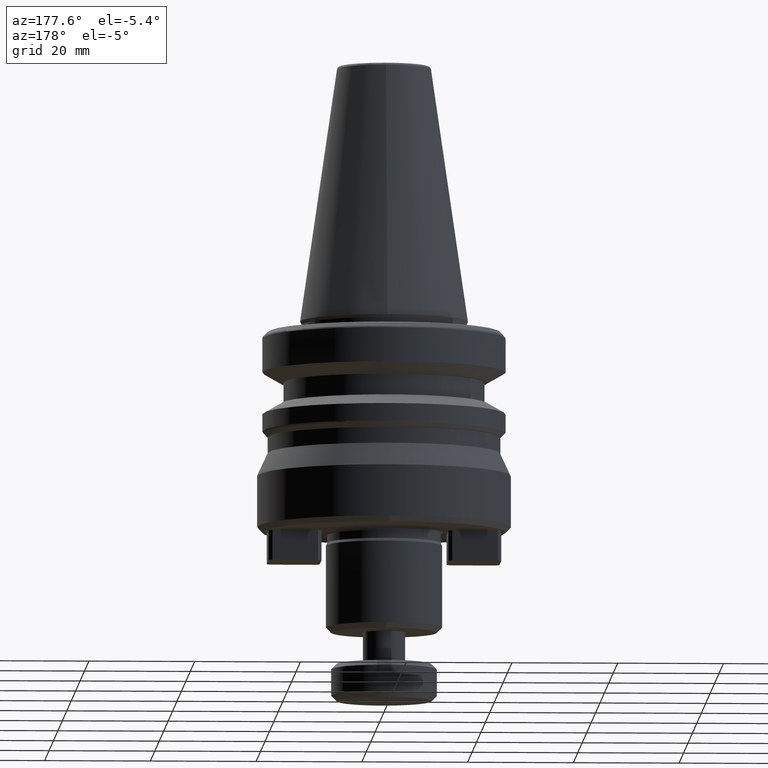
[diagram: clean part render]
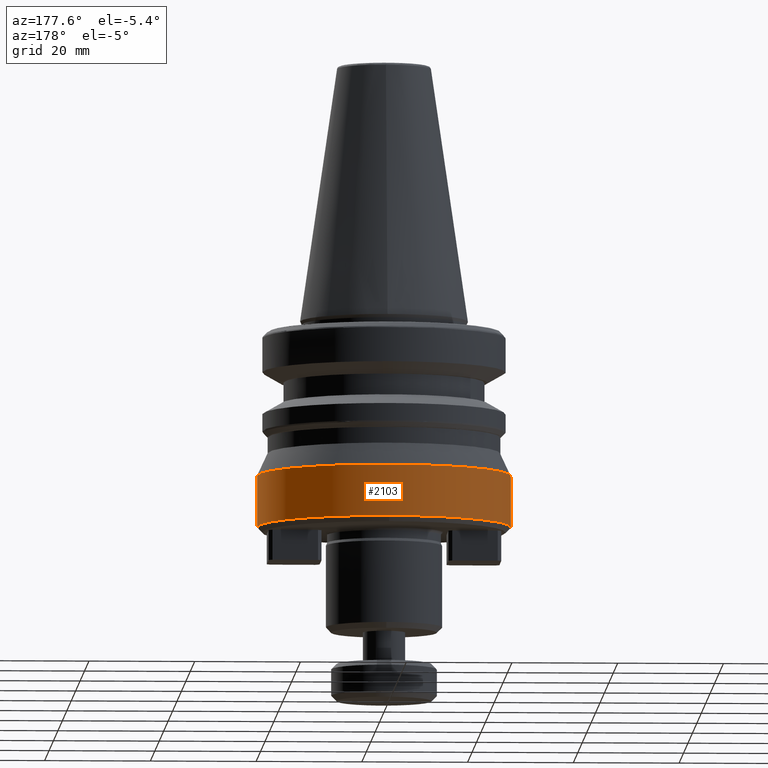
[diagram: same view with one face highlighted and labeled with its STEP entity id]
A machine part, auxiliary view. The second image highlights one B-rep face of the part: STEP entity #2103.
In plain terms, the highlighted cylindrical surface (partial cylindrical patch) has radius 24 mm, axis along (0, -0, 1).
Its self-contained STEP definition (entity closure, byte-faithful):
#142 = DIRECTION ( 'NONE',  ( 1.000000000000000000, 0.0000000000000000000, 0.0000000000000000000 ) ) ;
#145 = DIRECTION ( 'NONE',  ( -0.0000000000000000000, -0.0000000000000000000, -1.000000000000000000 ) ) ;
#147 = CIRCLE ( 'NONE', #1774, 24.00000000000000000 ) ;
#150 = CARTESIAN_POINT ( 'NONE',  ( 0.0000000000000000000, 0.0000000000000000000, -39.00000000000000000 ) ) ;
#160 = ORIENTED_EDGE ( 'NONE', *, *, #1160, .T. ) ;
#211 = VERTEX_POINT ( 'NONE', #1400 ) ;
#430 = AXIS2_PLACEMENT_3D ( 'NONE', #150, #145, #142 ) ;
#684 = CARTESIAN_POINT ( 'NONE',  ( -24.00000000000000000, 2.939152317953647900E-015, -39.00000000000000000 ) ) ;
#714 = EDGE_CURVE ( 'NONE', #1504, #211, #147, .T. ) ;
#746 = AXIS2_PLACEMENT_3D ( 'NONE', #2202, #2183, #2171 ) ;
#777 = VECTOR ( 'NONE', #2560, 1000.000000000000000 ) ;
#806 = EDGE_CURVE ( 'NONE', #1008, #2410, #2144, .T. ) ;
#809 = VERTEX_POINT ( 'NONE', #2615 ) ;
#813 = CIRCLE ( 'NONE', #3169, 24.00000000000000000 ) ;
#977 = ORIENTED_EDGE ( 'NONE', *, *, #806, .F. ) ;
#989 = EDGE_CURVE ( 'NONE', #1504, #809, #2078, .T. ) ;
#1008 = VERTEX_POINT ( 'NONE', #3073 ) ;
#1160 = EDGE_CURVE ( 'NONE', #809, #2410, #813, .T. ) ;
#1262 = CIRCLE ( 'NONE', #430, 24.00000000000000000 ) ;
#1400 = CARTESIAN_POINT ( 'NONE',  ( 2.939152317953647100E-015, 23.99999999999999300, -39.00000000000000000 ) ) ;
#1504 = VERTEX_POINT ( 'NONE', #684 ) ;
#1665 = CARTESIAN_POINT ( 'NONE',  ( 24.00000000000000000, 0.0000000000000000000, -29.28901384099991000 ) ) ;
#1774 = AXIS2_PLACEMENT_3D ( 'NONE', #2024, #2025, #2029 ) ;
#1866 = EDGE_LOOP ( 'NONE', ( #2149, #1923, #160, #977, #3023 ) ) ;
#1923 = ORIENTED_EDGE ( 'NONE', *, *, #989, .T. ) ;
#2024 = CARTESIAN_POINT ( 'NONE',  ( 0.0000000000000000000, 0.0000000000000000000, -39.00000000000000000 ) ) ;
#2025 = DIRECTION ( 'NONE',  ( -0.0000000000000000000, -0.0000000000000000000, -1.000000000000000000 ) ) ;
#2029 = DIRECTION ( 'NONE',  ( 1.000000000000000000, 0.0000000000000000000, 0.0000000000000000000 ) ) ;
#2078 = LINE ( 'NONE', #2957, #2861 ) ;
#2103 = ADVANCED_FACE ( 'NONE', ( #3218 ), #3225, .T. ) ;
#2144 = LINE ( 'NONE', #2609, #777 ) ;
#2149 = ORIENTED_EDGE ( 'NONE', *, *, #714, .F. ) ;
#2171 = DIRECTION ( 'NONE',  ( 1.000000000000000000, 0.0000000000000000000, 0.0000000000000000000 ) ) ;
#2183 = DIRECTION ( 'NONE',  ( 0.0000000000000000000, -0.0000000000000000000, 1.000000000000000000 ) ) ;
#2202 = CARTESIAN_POINT ( 'NONE',  ( 0.0000000000000000000, 0.0000000000000000000, -39.00000000000000000 ) ) ;
#2410 = VERTEX_POINT ( 'NONE', #1665 ) ;
#2560 = DIRECTION ( 'NONE',  ( 0.0000000000000000000, -0.0000000000000000000, 1.000000000000000000 ) ) ;
#2609 = CARTESIAN_POINT ( 'NONE',  ( 24.00000000000000000, 0.0000000000000000000, -39.00000000000000000 ) ) ;
#2615 = CARTESIAN_POINT ( 'NONE',  ( -24.00000000000000000, 2.939152317953647900E-015, -29.28901384099991000 ) ) ;
#2861 = VECTOR ( 'NONE', #3033, 1000.000000000000000 ) ;
#2906 = EDGE_CURVE ( 'NONE', #211, #1008, #1262, .T. ) ;
#2957 = CARTESIAN_POINT ( 'NONE',  ( -24.00000000000000000, 2.939152317953647900E-015, -39.00000000000000000 ) ) ;
#3023 = ORIENTED_EDGE ( 'NONE', *, *, #2906, .F. ) ;
#3033 = DIRECTION ( 'NONE',  ( 0.0000000000000000000, -0.0000000000000000000, 1.000000000000000000 ) ) ;
#3073 = CARTESIAN_POINT ( 'NONE',  ( 24.00000000000000000, 0.0000000000000000000, -39.00000000000000000 ) ) ;
#3169 = AXIS2_PLACEMENT_3D ( 'NONE', #3353, #3355, #3359 ) ;
#3218 = FACE_OUTER_BOUND ( 'NONE', #1866, .T. ) ;
#3225 = CYLINDRICAL_SURFACE ( 'NONE', #746, 24.00000000000000000 ) ;
#3353 = CARTESIAN_POINT ( 'NONE',  ( 0.0000000000000000000, 0.0000000000000000000, -29.28901384099991000 ) ) ;
#3355 = DIRECTION ( 'NONE',  ( 0.0000000000000000000, 0.0000000000000000000, -1.000000000000000000 ) ) ;
#3359 = DIRECTION ( 'NONE',  ( -1.000000000000000000, 0.0000000000000000000, -3.469446951953614200E-015 ) ) ;